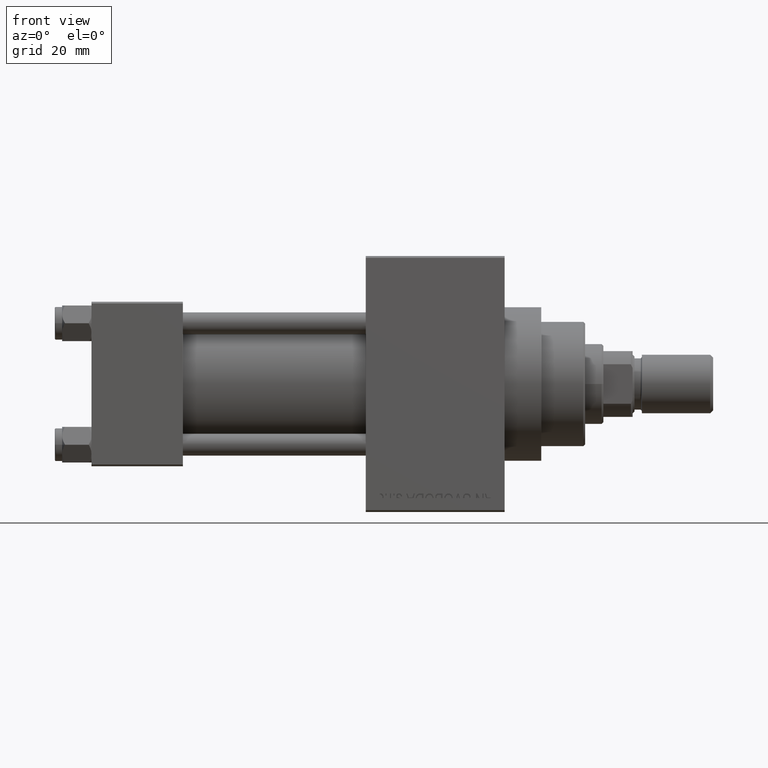
[diagram: clean part render]
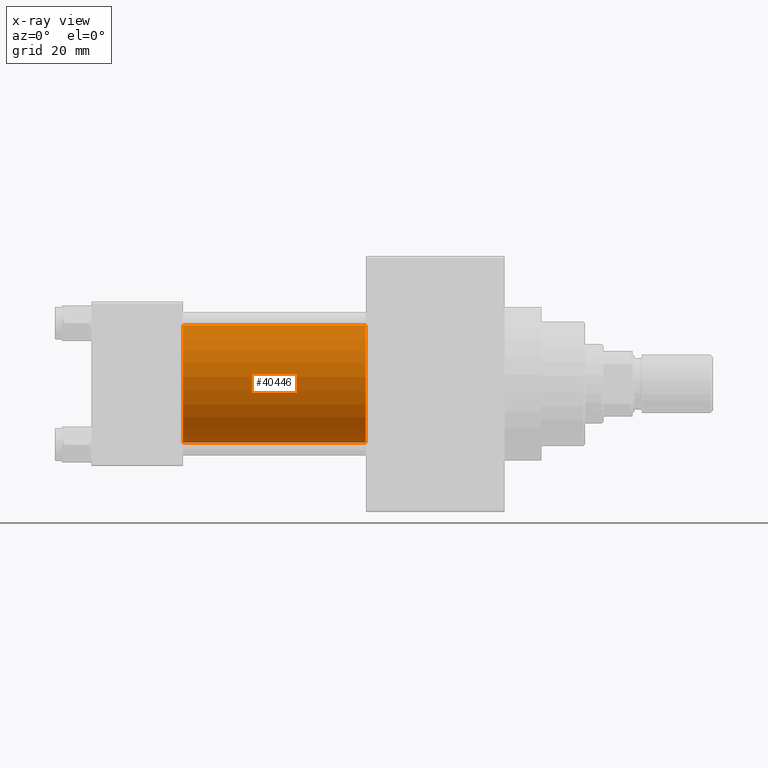
[diagram: x-ray — body ghosted, one internal face saturated and labeled with its STEP entity id]
A machine part, front view, then the same camera in x-ray: the body is ghosted and one INTERNAL B-rep face — a face not visible from any outside direction — is saturated and labeled: STEP entity #40446.
In plain terms, the highlighted cylindrical surface (partial cylindrical patch) has radius 16 mm, axis along (-1, -0, -0).
Its self-contained STEP definition (entity closure, byte-faithful):
#986 = DIRECTION ( 'NONE',  ( 0.000000000000000000, 0.000000000000000000, -1.000000000000000000 ) ) ;
#1309 = VERTEX_POINT ( 'NONE', #25675 ) ;
#5935 = VERTEX_POINT ( 'NONE', #23438 ) ;
#6548 = FACE_OUTER_BOUND ( 'NONE', #19065, .T. ) ;
#7581 = EDGE_CURVE ( 'NONE', #17452, #1309, #21087, .T. ) ;
#9370 = ORIENTED_EDGE ( 'NONE', *, *, #28378, .F. ) ;
#10373 = AXIS2_PLACEMENT_3D ( 'NONE', #47676, #40244, #36762 ) ;
#12253 = CARTESIAN_POINT ( 'NONE',  ( 75.00000000000001421, -6.426503353294456087E-16, -16.00000000000000000 ) ) ;
#14224 = DIRECTION ( 'NONE',  ( -1.000000000000000000, -0.000000000000000000, -0.000000000000000000 ) ) ;
#15770 = AXIS2_PLACEMENT_3D ( 'NONE', #46093, #37902, #986 ) ;
#17452 = VERTEX_POINT ( 'NONE', #12253 ) ;
#19065 = EDGE_LOOP ( 'NONE', ( #45756, #22096, #9370, #29912 ) ) ;
#20030 = VECTOR ( 'NONE', #28029, 1000.000000000000000 ) ;
#21087 = LINE ( 'NONE', #46607, #20030 ) ;
#22096 = ORIENTED_EDGE ( 'NONE', *, *, #7581, .T. ) ;
#23438 = CARTESIAN_POINT ( 'NONE',  ( 75.00000000000001421, -2.602085213965210642E-15, 16.00000000000000000 ) ) ;
#25675 = CARTESIAN_POINT ( 'NONE',  ( 25.00000000000000000, -6.426503353294456087E-16, -16.00000000000000000 ) ) ;
#28029 = DIRECTION ( 'NONE',  ( -1.000000000000000000, -0.000000000000000000, -0.000000000000000000 ) ) ;
#28378 = EDGE_CURVE ( 'NONE', #40742, #1309, #48816, .T. ) ;
#29912 = ORIENTED_EDGE ( 'NONE', *, *, #40416, .F. ) ;
#31430 = AXIS2_PLACEMENT_3D ( 'NONE', #42704, #46911, #31795 ) ;
#31795 = DIRECTION ( 'NONE',  ( 0.000000000000000000, 0.000000000000000000, -1.000000000000000000 ) ) ;
#33432 = EDGE_CURVE ( 'NONE', #5935, #17452, #49023, .T. ) ;
#36762 = DIRECTION ( 'NONE',  ( 0.000000000000000000, 0.000000000000000000, 1.000000000000000000 ) ) ;
#37902 = DIRECTION ( 'NONE',  ( 1.000000000000000000, 0.000000000000000000, 0.000000000000000000 ) ) ;
#40244 = DIRECTION ( 'NONE',  ( -1.000000000000000000, -0.000000000000000000, -0.000000000000000000 ) ) ;
#40366 = CARTESIAN_POINT ( 'NONE',  ( 25.00000000000000000, -2.602085213965210642E-15, 16.00000000000000000 ) ) ;
#40416 = EDGE_CURVE ( 'NONE', #5935, #40742, #44207, .T. ) ;
#40446 = ADVANCED_FACE ( 'NONE', ( #6548 ), #48413, .F. ) ;
#40733 = CARTESIAN_POINT ( 'NONE',  ( 75.00000000000001421, -2.602085213965210642E-15, 16.00000000000000000 ) ) ;
#40742 = VERTEX_POINT ( 'NONE', #40366 ) ;
#42704 = CARTESIAN_POINT ( 'NONE',  ( 25.00000000000000000, -2.602085213965210642E-15, 0.000000000000000000 ) ) ;
#42770 = VECTOR ( 'NONE', #14224, 1000.000000000000000 ) ;
#44207 = LINE ( 'NONE', #40733, #42770 ) ;
#45756 = ORIENTED_EDGE ( 'NONE', *, *, #33432, .T. ) ;
#46093 = CARTESIAN_POINT ( 'NONE',  ( 75.00000000000001421, -2.602085213965210642E-15, 0.000000000000000000 ) ) ;
#46607 = CARTESIAN_POINT ( 'NONE',  ( 75.00000000000001421, -6.426503353294456087E-16, -16.00000000000000000 ) ) ;
#46911 = DIRECTION ( 'NONE',  ( 1.000000000000000000, 0.000000000000000000, 0.000000000000000000 ) ) ;
#47676 = CARTESIAN_POINT ( 'NONE',  ( 75.00000000000001421, -2.602085213965210642E-15, 0.000000000000000000 ) ) ;
#48413 = CYLINDRICAL_SURFACE ( 'NONE', #10373, 16.00000000000000000 ) ;
#48816 = CIRCLE ( 'NONE', #31430, 16.00000000000000000 ) ;
#49023 = CIRCLE ( 'NONE', #15770, 16.00000000000000000 ) ;